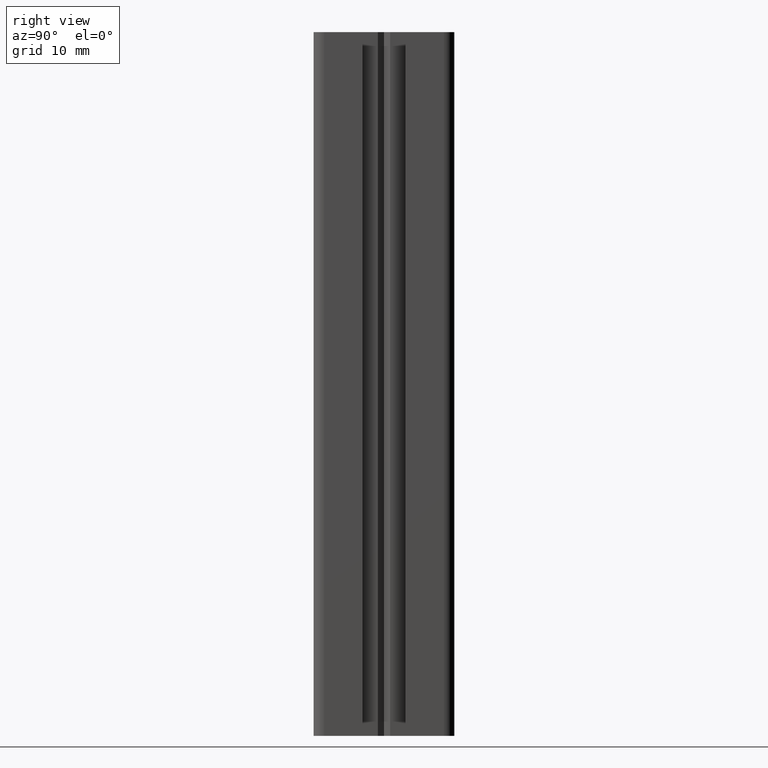
[diagram: clean part render]
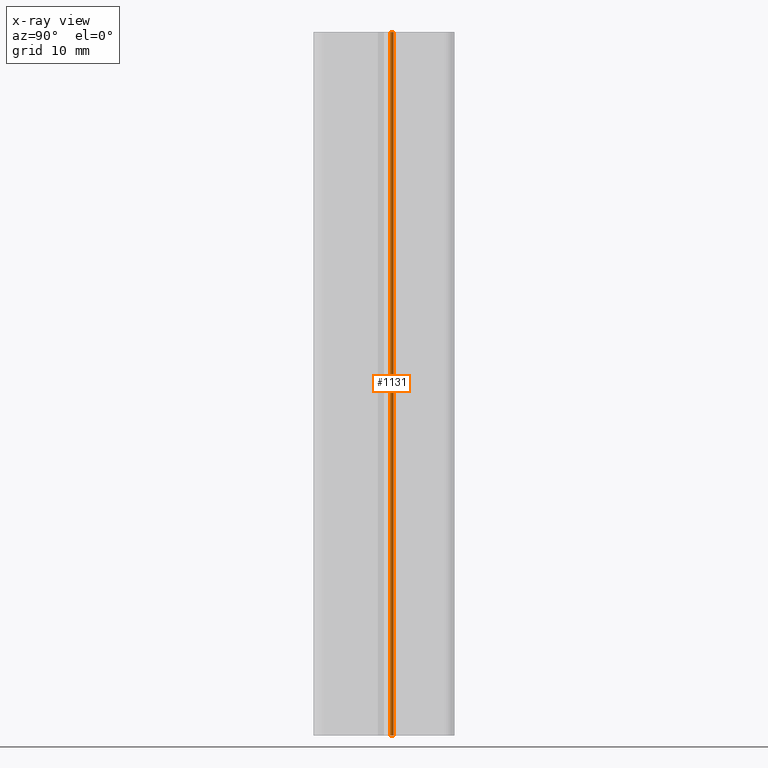
[diagram: x-ray — body ghosted, one internal face saturated and labeled with its STEP entity id]
A machine part, right view, then the same camera in x-ray: the body is ghosted and one INTERNAL B-rep face — a face not visible from any outside direction — is saturated and labeled: STEP entity #1131.
In plain terms, the highlighted cylindrical surface (edge-blend (fillet) strip) has radius 0.5 mm, axis along (-0, -0, -1).
Its self-contained STEP definition (entity closure, byte-faithful):
#111 = DIRECTION ( 'NONE',  ( -0.0000000000000000000, -0.0000000000000000000, -1.000000000000000000 ) ) ;
#112 = CARTESIAN_POINT ( 'NONE',  ( -3.079529617524869900, 1.038747289068524500, 100.0000000000000000 ) ) ;
#170 = VERTEX_POINT ( 'NONE', #1834 ) ;
#225 = EDGE_CURVE ( 'NONE', #170, #1421, #1913, .T. ) ;
#468 = VERTEX_POINT ( 'NONE', #1542 ) ;
#471 = EDGE_CURVE ( 'NONE', #468, #1439, #1690, .T. ) ;
#1057 = EDGE_LOOP ( 'NONE', ( #1123, #1128, #1142, #1115 ) ) ;
#1115 = ORIENTED_EDGE ( 'NONE', *, *, #1422, .T. ) ;
#1123 = ORIENTED_EDGE ( 'NONE', *, *, #471, .F. ) ;
#1128 = ORIENTED_EDGE ( 'NONE', *, *, #1132, .F. ) ;
#1131 = ADVANCED_FACE ( 'NONE', ( #3313 ), #3326, .T. ) ;
#1132 = EDGE_CURVE ( 'NONE', #170, #468, #3351, .T. ) ;
#1142 = ORIENTED_EDGE ( 'NONE', *, *, #225, .T. ) ;
#1335 = DIRECTION ( 'NONE',  ( 1.000000000000000000, 0.0000000000000000000, 0.0000000000000000000 ) ) ;
#1421 = VERTEX_POINT ( 'NONE', #3765 ) ;
#1422 = EDGE_CURVE ( 'NONE', #1421, #1439, #3808, .T. ) ;
#1439 = VERTEX_POINT ( 'NONE', #3828 ) ;
#1542 = CARTESIAN_POINT ( 'NONE',  ( -2.696507073104141400, 1.360140709140360300, 0.0000000000000000000 ) ) ;
#1676 = DIRECTION ( 'NONE',  ( 1.000000000000000000, 0.0000000000000000000, 0.0000000000000000000 ) ) ;
#1688 = CARTESIAN_POINT ( 'NONE',  ( -3.079529617524869900, 1.038747289068524500, 0.0000000000000000000 ) ) ;
#1690 = CIRCLE ( 'NONE', #1696, 0.4999999999999995600 ) ;
#1696 = AXIS2_PLACEMENT_3D ( 'NONE', #1688, #1710, #1676 ) ;
#1710 = DIRECTION ( 'NONE',  ( -0.0000000000000000000, -0.0000000000000000000, -1.000000000000000000 ) ) ;
#1834 = CARTESIAN_POINT ( 'NONE',  ( -2.696507073104141800, 1.360140709140359900, 100.0000000000000000 ) ) ;
#1913 = CIRCLE ( 'NONE', #1918, 0.4999999999999995600 ) ;
#1918 = AXIS2_PLACEMENT_3D ( 'NONE', #112, #111, #1335 ) ;
#3313 = FACE_OUTER_BOUND ( 'NONE', #1057, .T. ) ;
#3326 = CYLINDRICAL_SURFACE ( 'NONE', #3360, 0.4999999999999995600 ) ;
#3348 = DIRECTION ( 'NONE',  ( -0.0000000000000000000, -0.0000000000000000000, -1.000000000000000000 ) ) ;
#3349 = VECTOR ( 'NONE', #3348, 1000.000000000000000 ) ;
#3350 = CARTESIAN_POINT ( 'NONE',  ( -2.696507073104141800, 1.360140709140359900, 100.0000000000000000 ) ) ;
#3351 = LINE ( 'NONE', #3350, #3349 ) ;
#3352 = DIRECTION ( 'NONE',  ( -1.000000000000000000, 0.0000000000000000000, 0.0000000000000000000 ) ) ;
#3354 = DIRECTION ( 'NONE',  ( -0.0000000000000000000, -0.0000000000000000000, -1.000000000000000000 ) ) ;
#3356 = CARTESIAN_POINT ( 'NONE',  ( -3.079529617524869900, 1.038747289068524500, 100.0000000000000000 ) ) ;
#3360 = AXIS2_PLACEMENT_3D ( 'NONE', #3356, #3354, #3352 ) ;
#3765 = CARTESIAN_POINT ( 'NONE',  ( -2.605755798720233800, 0.8789400032043598300, 100.0000000000000000 ) ) ;
#3805 = DIRECTION ( 'NONE',  ( -0.0000000000000000000, -0.0000000000000000000, -1.000000000000000000 ) ) ;
#3806 = VECTOR ( 'NONE', #3805, 1000.000000000000000 ) ;
#3807 = CARTESIAN_POINT ( 'NONE',  ( -2.605755798720233800, 0.8789400032043598300, 100.0000000000000000 ) ) ;
#3808 = LINE ( 'NONE', #3807, #3806 ) ;
#3828 = CARTESIAN_POINT ( 'NONE',  ( -2.605755798720233800, 0.8789400032043598300, 0.0000000000000000000 ) ) ;